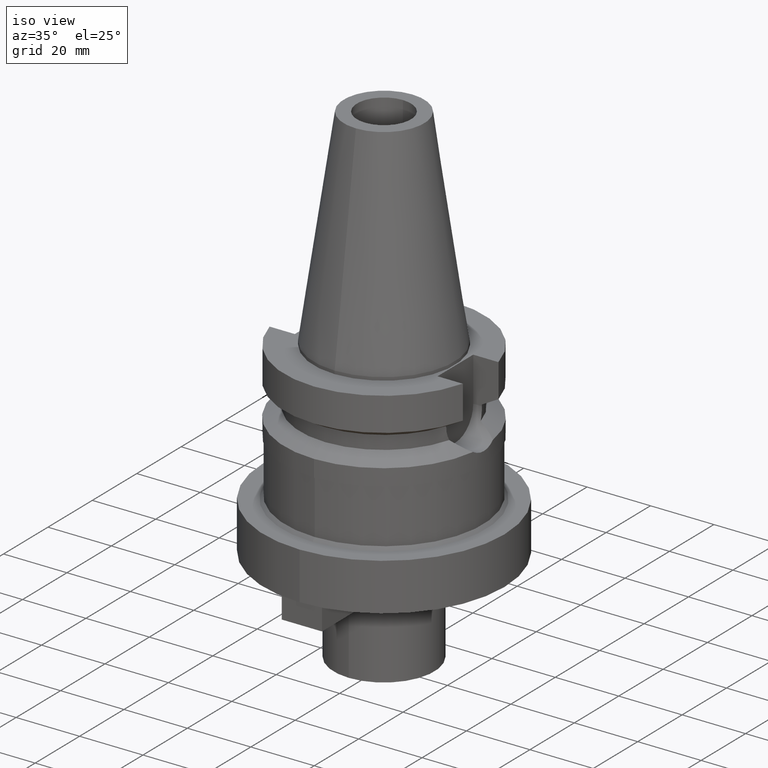
[diagram: clean part render]
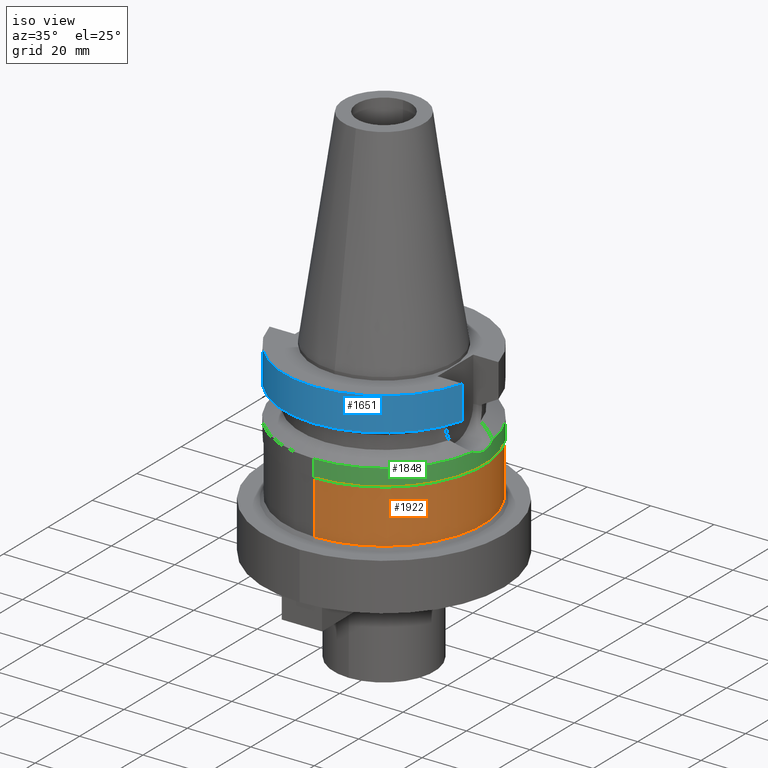
[diagram: same view with three faces highlighted in distinct colors, each labeled with its STEP entity id]
A machine part, iso view with three faces highlighted in distinct colors.
Their STEP definitions:

[orange] entity #1922 — the highlighted cylindrical surface (partial cylindrical patch) has radius 31.2 mm, axis along (0, 0, -1).
#653=CARTESIAN_POINT('',(0.E0,2.120720862083E-14,-2.7E1));
#654=DIRECTION('',(0.E0,0.E0,-1.E0));
#655=DIRECTION('',(0.E0,1.E0,0.E0));
#656=AXIS2_PLACEMENT_3D('',#653,#654,#655);
#661=DIRECTION('',(0.E0,0.E0,-1.E0));
#662=VECTOR('',#661,1.7E1);
#663=CARTESIAN_POINT('',(0.E0,-3.12E1,-2.7E1));
#664=LINE('',#663,#662);
#668=DIRECTION('',(0.E0,0.E0,-1.E0));
#669=VECTOR('',#668,1.7E1);
#670=CARTESIAN_POINT('',(0.E0,3.12E1,-2.7E1));
#671=LINE('',#670,#669);
#682=CARTESIAN_POINT('',(0.E0,0.E0,-4.4E1));
#683=DIRECTION('',(0.E0,0.E0,1.E0));
#684=DIRECTION('',(0.E0,-1.E0,0.E0));
#685=AXIS2_PLACEMENT_3D('',#682,#683,#684);
#1343=CARTESIAN_POINT('',(0.E0,3.12E1,-4.4E1));
#1344=VERTEX_POINT('',#1343);
#1345=CARTESIAN_POINT('',(0.E0,-3.12E1,-4.4E1));
#1346=VERTEX_POINT('',#1345);
#1347=CARTESIAN_POINT('',(0.E0,3.12E1,-2.7E1));
#1348=VERTEX_POINT('',#1347);
#1349=CARTESIAN_POINT('',(0.E0,-3.12E1,-2.7E1));
#1350=VERTEX_POINT('',#1349);
#1910=CARTESIAN_POINT('',(0.E0,2.120720862083E-14,7.317E1));
#1911=DIRECTION('',(0.E0,0.E0,-1.E0));
#1912=DIRECTION('',(0.E0,-1.E0,0.E0));
#1913=AXIS2_PLACEMENT_3D('',#1910,#1911,#1912);
#1914=CYLINDRICAL_SURFACE('',#1913,3.12E1);
#1915=ORIENTED_EDGE('',*,*,#1900,.T.);
#1917=ORIENTED_EDGE('',*,*,#1916,.F.);
#1918=ORIENTED_EDGE('',*,*,#1903,.F.);
#1919=ORIENTED_EDGE('',*,*,#1890,.F.);
#1920=EDGE_LOOP('',(#1915,#1917,#1918,#1919));
#1921=FACE_OUTER_BOUND('',#1920,.F.);
#657=CIRCLE('',#656,3.12E1);
#686=CIRCLE('',#685,3.12E1);
#1890=EDGE_CURVE('',#1348,#1350,#657,.T.);
#1900=EDGE_CURVE('',#1348,#1344,#671,.T.);
#1903=EDGE_CURVE('',#1350,#1346,#664,.T.);
#1916=EDGE_CURVE('',#1346,#1344,#686,.T.);
#1922=ADVANCED_FACE('',(#1921),#1914,.T.);

[blue] entity #1651 — the highlighted cylindrical surface (partial cylindrical patch) has radius 31.5 mm, axis along (0, 0, -1).
#138=CARTESIAN_POINT('',(0.E0,2.120720862083E-14,-1.E0));
#139=DIRECTION('',(0.E0,0.E0,-1.E0));
#140=DIRECTION('',(9.667943721520E-1,-2.555555555556E-1,0.E0));
#141=AXIS2_PLACEMENT_3D('',#138,#139,#140);
#146=CARTESIAN_POINT('',(0.E0,2.120720862083E-14,-1.E0));
#147=DIRECTION('',(0.E0,0.E0,-1.E0));
#148=DIRECTION('',(0.E0,-1.E0,0.E0));
#149=AXIS2_PLACEMENT_3D('',#146,#147,#148);
#251=CARTESIAN_POINT('',(0.E0,1.065333950388E-14,-1.156550565267E1));
#252=DIRECTION('',(0.E0,0.E0,1.E0));
#253=DIRECTION('',(-9.667943721520E-1,-2.555555555555E-1,0.E0));
#254=AXIS2_PLACEMENT_3D('',#251,#252,#253);
#259=CARTESIAN_POINT('',(0.E0,1.065333950388E-14,-1.156550565267E1));
#260=DIRECTION('',(0.E0,0.E0,1.E0));
#261=DIRECTION('',(0.E0,-1.E0,0.E0));
#262=AXIS2_PLACEMENT_3D('',#259,#260,#261);
#283=DIRECTION('',(1.807224144375E-8,-6.836948612138E-8,1.E0));
#284=VECTOR('',#283,1.056551215880E1);
#285=CARTESIAN_POINT('',(-3.045402291373E1,-8.049999277641E0,
-1.156551215880E1));
#286=LINE('',#285,#284);
#290=DIRECTION('',(-1.037090600904E-7,-3.923420837770E-7,-9.999999999999E-1));
#291=VECTOR('',#290,1.056546831377E1);
#292=CARTESIAN_POINT('',(3.045402272279E1,-8.05E0,-1.E0));
#293=LINE('',#292,#291);
#1404=CARTESIAN_POINT('',(-3.045402272279E1,-8.05E0,-1.E0));
#1405=VERTEX_POINT('',#1404);
#1406=CARTESIAN_POINT('',(-3.045402291373E1,-8.049999277641E0,
-1.156551215880E1));
#1407=VERTEX_POINT('',#1406);
#1420=CARTESIAN_POINT('',(3.045402272279E1,-8.05E0,-1.E0));
#1421=VERTEX_POINT('',#1420);
#1422=CARTESIAN_POINT('',(3.046064939756E-14,-3.15E1,-1.E0));
#1423=VERTEX_POINT('',#1422);
#1433=CARTESIAN_POINT('',(0.E0,-3.15E1,-1.156550565267E1));
#1434=CARTESIAN_POINT('',(3.045402272279E1,-8.049999999999E0,
-1.156550565267E1));
#1435=VERTEX_POINT('',#1433);
#1436=VERTEX_POINT('',#1434);
#1637=CARTESIAN_POINT('',(0.E0,2.120720862083E-14,7.317E1));
#1638=DIRECTION('',(0.E0,0.E0,-1.E0));
#1639=DIRECTION('',(0.E0,-1.E0,0.E0));
#1640=AXIS2_PLACEMENT_3D('',#1637,#1638,#1639);
#1641=CYLINDRICAL_SURFACE('',#1640,3.15E1);
#1642=ORIENTED_EDGE('',*,*,#1590,.T.);
#1643=ORIENTED_EDGE('',*,*,#1551,.F.);
#1644=ORIENTED_EDGE('',*,*,#1549,.F.);
#1646=ORIENTED_EDGE('',*,*,#1645,.T.);
#1647=ORIENTED_EDGE('',*,*,#1628,.F.);
#1648=ORIENTED_EDGE('',*,*,#1626,.F.);
#1649=EDGE_LOOP('',(#1642,#1643,#1644,#1646,#1647,#1648));
#1650=FACE_OUTER_BOUND('',#1649,.F.);
#142=CIRCLE('',#141,3.15E1);
#150=CIRCLE('',#149,3.15E1);
#255=CIRCLE('',#254,3.15E1);
#263=CIRCLE('',#262,3.15E1);
#1549=EDGE_CURVE('',#1421,#1423,#142,.T.);
#1551=EDGE_CURVE('',#1423,#1405,#150,.T.);
#1590=EDGE_CURVE('',#1407,#1405,#286,.T.);
#1626=EDGE_CURVE('',#1407,#1435,#255,.T.);
#1628=EDGE_CURVE('',#1435,#1436,#263,.T.);
#1645=EDGE_CURVE('',#1421,#1436,#293,.T.);
#1651=ADVANCED_FACE('',(#1650),#1641,.T.);

[green] entity #1848 — the highlighted cylindrical surface (partial cylindrical patch) has radius 31.5 mm, axis along (0, 0, -1).
#498=CARTESIAN_POINT('',(0.E0,0.E0,-2.163449434733E1));
#499=DIRECTION('',(0.E0,0.E0,-1.E0));
#500=DIRECTION('',(9.898094849553E-1,-1.423979757319E-1,0.E0));
#501=AXIS2_PLACEMENT_3D('',#498,#499,#500);
#539=CARTESIAN_POINT('',(3.117899877609E1,-4.485536235554E0,-2.163449434733E1));
#540=CARTESIAN_POINT('',(3.124368763885E1,-4.035883425560E0,-2.193622756272E1));
#541=CARTESIAN_POINT('',(3.135874382981E1,-3.100355133071E0,-2.243554538910E1));
#542=CARTESIAN_POINT('',(3.147361120250E1,-1.571038160430E0,-2.289772962882E1));
#543=CARTESIAN_POINT('',(3.150000030227E1,-5.301930198635E-1,
-2.300000138149E1));
#544=CARTESIAN_POINT('',(3.150000030227E1,4.147445259395E-14,
-2.300000138149E1));
#549=CARTESIAN_POINT('',(3.150000030227E1,4.147445259395E-14,
-2.300000138149E1));
#550=CARTESIAN_POINT('',(3.150000030227E1,5.302393167220E-1,-2.300000138149E1));
#551=CARTESIAN_POINT('',(3.147360647208E1,1.571145545670E0,-2.289771109817E1));
#552=CARTESIAN_POINT('',(3.135873342942E1,3.100451489199E0,-2.243550222151E1));
#553=CARTESIAN_POINT('',(3.124368229242E1,4.035920588603E0,-2.193620262498E1));
#554=CARTESIAN_POINT('',(3.117899877609E1,4.485536235554E0,-2.163449434733E1));
#559=DIRECTION('',(0.E0,1.099151708819E-13,-1.E0));
#560=VECTOR('',#559,5.365505652669E0);
#561=CARTESIAN_POINT('',(0.E0,3.15E1,-2.163449434733E1));
#562=LINE('',#561,#560);
#574=CARTESIAN_POINT('',(0.E0,0.E0,-2.163449434733E1));
#575=DIRECTION('',(0.E0,0.E0,-1.E0));
#576=DIRECTION('',(0.E0,1.E0,0.E0));
#577=AXIS2_PLACEMENT_3D('',#574,#575,#576);
#622=DIRECTION('',(0.E0,-1.105773104655E-13,-1.E0));
#623=VECTOR('',#622,5.365505652669E0);
#624=CARTESIAN_POINT('',(0.E0,-3.15E1,-2.163449434733E1));
#625=LINE('',#624,#623);
#629=CARTESIAN_POINT('',(0.E0,2.120720862083E-14,-2.7E1));
#630=DIRECTION('',(0.E0,0.E0,1.E0));
#631=DIRECTION('',(0.E0,-1.E0,0.E0));
#632=AXIS2_PLACEMENT_3D('',#629,#630,#631);
#1351=CARTESIAN_POINT('',(0.E0,-3.15E1,-2.7E1));
#1352=CARTESIAN_POINT('',(0.E0,3.15E1,-2.7E1));
#1353=VERTEX_POINT('',#1351);
#1354=VERTEX_POINT('',#1352);
#1355=VERTEX_POINT('',#549);
#1356=VERTEX_POINT('',#554);
#1357=VERTEX_POINT('',#539);
#1358=CARTESIAN_POINT('',(0.E0,3.15E1,-2.163449434733E1));
#1359=VERTEX_POINT('',#1358);
#1360=CARTESIAN_POINT('',(0.E0,-3.15E1,-2.163449434733E1));
#1361=VERTEX_POINT('',#1360);
#1830=CARTESIAN_POINT('',(0.E0,2.120720862083E-14,7.317E1));
#1831=DIRECTION('',(0.E0,0.E0,-1.E0));
#1832=DIRECTION('',(0.E0,-1.E0,0.E0));
#1833=AXIS2_PLACEMENT_3D('',#1830,#1831,#1832);
#1834=CYLINDRICAL_SURFACE('',#1833,3.15E1);
#1835=ORIENTED_EDGE('',*,*,#1816,.T.);
#1836=ORIENTED_EDGE('',*,*,#1814,.T.);
#1838=ORIENTED_EDGE('',*,*,#1837,.F.);
#1840=ORIENTED_EDGE('',*,*,#1839,.T.);
#1842=ORIENTED_EDGE('',*,*,#1841,.F.);
#1844=ORIENTED_EDGE('',*,*,#1843,.F.);
#1845=ORIENTED_EDGE('',*,*,#1802,.F.);
#1846=EDGE_LOOP('',(#1835,#1836,#1838,#1840,#1842,#1844,#1845));
#1847=FACE_OUTER_BOUND('',#1846,.F.);
#502=CIRCLE('',#501,3.15E1);
#545=B_SPLINE_CURVE_WITH_KNOTS('',3,(#539,#540,#541,#542,#543,#544),
.UNSPECIFIED.,.F.,.F.,(4,1,1,4),(0.E0,3.333333333333E-1,6.666666666667E-1,1.E0),
.UNSPECIFIED.);
#555=B_SPLINE_CURVE_WITH_KNOTS('',3,(#549,#550,#551,#552,#553,#554),
.UNSPECIFIED.,.F.,.F.,(4,1,1,4),(0.E0,3.333333333333E-1,6.666666666667E-1,1.E0),
.UNSPECIFIED.);
#578=CIRCLE('',#577,3.15E1);
#633=CIRCLE('',#632,3.15E1);
#1802=EDGE_CURVE('',#1357,#1361,#502,.T.);
#1814=EDGE_CURVE('',#1355,#1356,#555,.T.);
#1816=EDGE_CURVE('',#1357,#1355,#545,.T.);
#1837=EDGE_CURVE('',#1359,#1356,#578,.T.);
#1839=EDGE_CURVE('',#1359,#1354,#562,.T.);
#1841=EDGE_CURVE('',#1353,#1354,#633,.T.);
#1843=EDGE_CURVE('',#1361,#1353,#625,.T.);
#1848=ADVANCED_FACE('',(#1847),#1834,.T.);